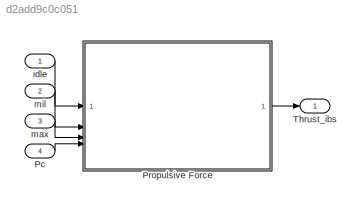
MODEL slx_d2add9c0c051
KIND library
CONFIG AbsTol = auto
CONFIG EnableMultiTasking = off
CONFIG FixedStep = auto
CONFIG MaxStep = auto
CONFIG MinStep = auto
CONFIG RelTol = 1e-3
CONFIG SampleTimeConstraint = Unconstrained
CONFIG SolverName = VariableStepAuto
CONFIG StartTime = 0.0
CONFIG StopTime = 10.0
BLOCK [Inport] Pc
  Port = 4
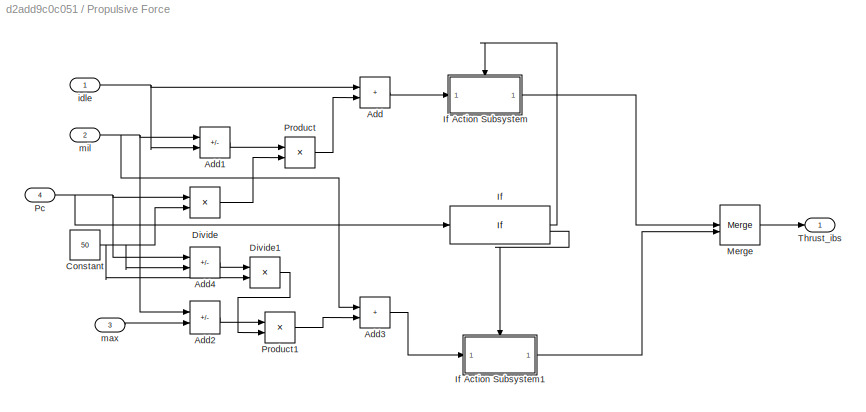
BLOCK [SubSystem] Propulsive Force
BLOCK [Sum] Propulsive Force/Add
  IconShape = rectangular
BLOCK [Sum] Propulsive Force/Add1
  IconShape = rectangular
  Inputs = +-
BLOCK [Sum] Propulsive Force/Add2
  IconShape = rectangular
  Inputs = -+
BLOCK [Sum] Propulsive Force/Add3
  IconShape = rectangular
BLOCK [Sum] Propulsive Force/Add4
  IconShape = rectangular
  Inputs = +-
BLOCK [Constant] Propulsive Force/Constant
  Value = 50
BLOCK [Product] Propulsive Force/Divide
  Inputs = */
BLOCK [Product] Propulsive Force/Divide1
  Inputs = */
BLOCK [If] Propulsive Force/If
  IfExpression = u1 < 50
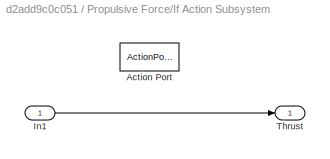
BLOCK [SubSystem] Propulsive Force/If Action Subsystem
  TreatAsAtomicUnit = on
BLOCK [ActionPort] Propulsive Force/If Action Subsystem/Action Port
  ActionPortLabel = if(u1 < 50)
BLOCK [Inport] Propulsive Force/If Action Subsystem/In1
BLOCK [Outport] Propulsive Force/If Action Subsystem/Thrust
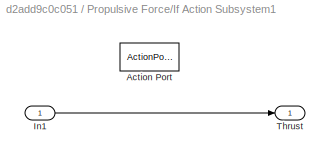
BLOCK [SubSystem] Propulsive Force/If Action Subsystem1
  TreatAsAtomicUnit = on
BLOCK [ActionPort] Propulsive Force/If Action Subsystem1/Action Port
  ActionPortLabel = else
BLOCK [Inport] Propulsive Force/If Action Subsystem1/In1
BLOCK [Outport] Propulsive Force/If Action Subsystem1/Thrust
BLOCK [Merge] Propulsive Force/Merge
BLOCK [Inport] Propulsive Force/Pc
  Port = 4
BLOCK [Product] Propulsive Force/Product
BLOCK [Product] Propulsive Force/Product1
BLOCK [Outport] Propulsive Force/Thrust_ibs
BLOCK [Inport] Propulsive Force/idle
BLOCK [Inport] Propulsive Force/max
  Port = 3
BLOCK [Inport] Propulsive Force/mil
  Port = 2
BLOCK [Outport] Thrust_ibs
BLOCK [Inport] idle
BLOCK [Inport] max
  Port = 3
BLOCK [Inport] mil
  Port = 2
LINE Pc:1 -> Propulsive Force:4
LINE Propulsive Force/Add1:1 -> Propulsive Force/Product:1
LINE Propulsive Force/Add2:1 -> Propulsive Force/Product1:1
LINE Propulsive Force/Add3:1 -> Propulsive Force/If Action Subsystem1:1
LINE Propulsive Force/Add4:1 -> Propulsive Force/Divide1:1
LINE Propulsive Force/Add:1 -> Propulsive Force/If Action Subsystem:1
NET Propulsive Force/Constant:1 -> Propulsive Force/Add4:2, Propulsive Force/Divide1:2, Propulsive Force/Divide:2
LINE Propulsive Force/Divide1:1 -> Propulsive Force/Product1:2
LINE Propulsive Force/Divide:1 -> Propulsive Force/Product:2
LINE Propulsive Force/If Action Subsystem/In1:1 -> Propulsive Force/If Action Subsystem/Thrust:1
LINE Propulsive Force/If Action Subsystem1/In1:1 -> Propulsive Force/If Action Subsystem1/Thrust:1
LINE Propulsive Force/If Action Subsystem1:1 -> Propulsive Force/Merge:2
LINE Propulsive Force/If Action Subsystem:1 -> Propulsive Force/Merge:1
LINE Propulsive Force/If:1 -> Propulsive Force/If Action Subsystem:ifaction
LINE Propulsive Force/If:2 -> Propulsive Force/If Action Subsystem1:ifaction
LINE Propulsive Force/Merge:1 -> Propulsive Force/Thrust_ibs:1
NET Propulsive Force/Pc:1 -> Propulsive Force/Add4:1, Propulsive Force/Divide:1, Propulsive Force/If:1
LINE Propulsive Force/Product1:1 -> Propulsive Force/Add3:2
LINE Propulsive Force/Product:1 -> Propulsive Force/Add:2
NET Propulsive Force/idle:1 -> Propulsive Force/Add1:2, Propulsive Force/Add:1
LINE Propulsive Force/max:1 -> Propulsive Force/Add2:2
NET Propulsive Force/mil:1 -> Propulsive Force/Add1:1, Propulsive Force/Add2:1, Propulsive Force/Add3:1
LINE Propulsive Force:1 -> Thrust_ibs:1
LINE idle:1 -> Propulsive Force:1
LINE max:1 -> Propulsive Force:3
LINE mil:1 -> Propulsive Force:2
note: NET lines group one-source signal fan-out (src -> all destinations, sorted); 1:1 wires keep LINE
